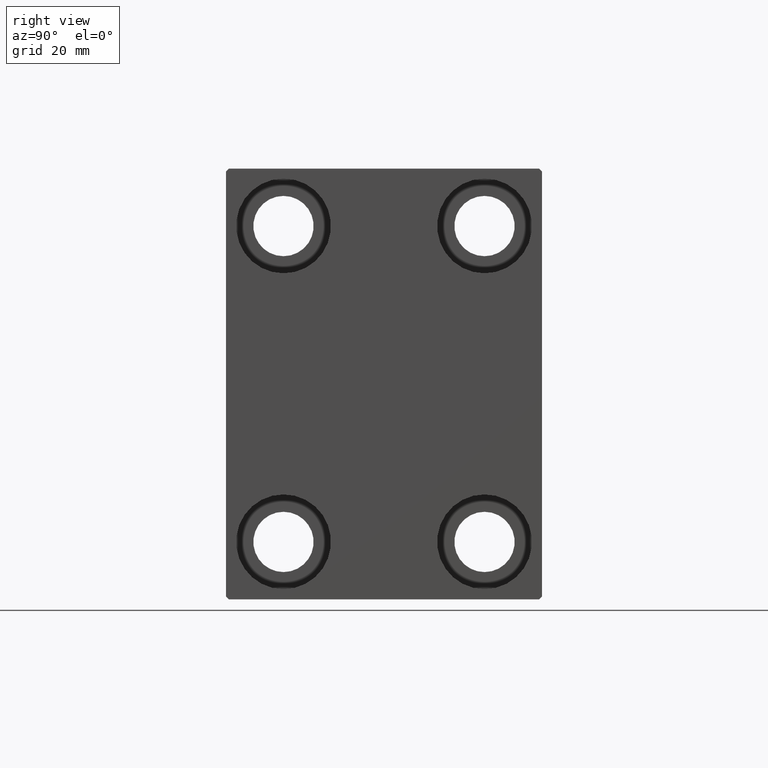
[diagram: clean part render]
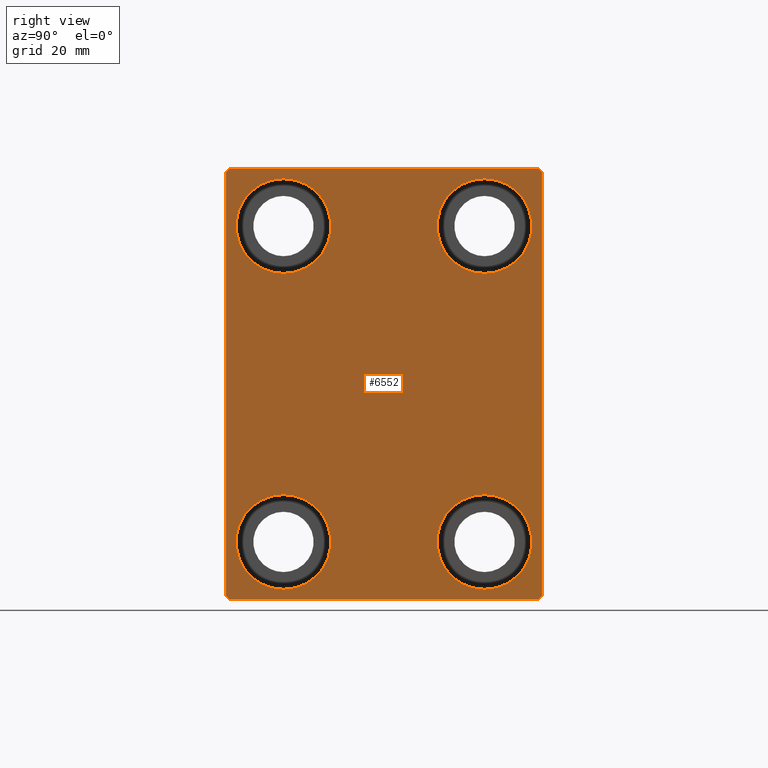
[diagram: same view with one face highlighted and labeled with its STEP entity id]
A machine part, right view. The second image highlights one B-rep face of the part: STEP entity #6552.
In plain terms, the highlighted planar face has unit normal (1, 0, 0).
Its self-contained STEP definition (entity closure, byte-faithful):
#413 = CARTESIAN_POINT ( 'NONE',  ( 75.00000000000000000, -27.50000000000000355, 37.50000000000000000 ) ) ;
#453 = VERTEX_POINT ( 'NONE', #12860 ) ;
#493 = CARTESIAN_POINT ( 'NONE',  ( 75.00000000000000000, 0.000000000000000000, 0.000000000000000000 ) ) ;
#673 = CARTESIAN_POINT ( 'NONE',  ( 75.00000000000000000, 17.50000000000000355, 35.74999999999999289 ) ) ;
#1013 = VERTEX_POINT ( 'NONE', #30051 ) ;
#1018 = VECTOR ( 'NONE', #8622, 1000.000000000000000 ) ;
#1132 = CARTESIAN_POINT ( 'NONE',  ( 75.00000000000000000, 17.50000000000000355, 19.25000000000000000 ) ) ;
#1497 = DIRECTION ( 'NONE',  ( -0.000000000000000000, 0.7071067811865474617, 0.7071067811865474617 ) ) ;
#1647 = LINE ( 'NONE', #8533, #13501 ) ;
#1760 = CARTESIAN_POINT ( 'NONE',  ( 75.00000000000000000, 27.00000000000000355, -37.50000000000000000 ) ) ;
#1762 = AXIS2_PLACEMENT_3D ( 'NONE', #9081, #5747, #30403 ) ;
#2148 = DIRECTION ( 'NONE',  ( 0.000000000000000000, 0.000000000000000000, 1.000000000000000000 ) ) ;
#2385 = VECTOR ( 'NONE', #1497, 1000.000000000000114 ) ;
#2696 = EDGE_CURVE ( 'NONE', #15962, #18148, #16379, .T. ) ;
#3442 = VERTEX_POINT ( 'NONE', #673 ) ;
#3531 = EDGE_CURVE ( 'NONE', #453, #37276, #18446, .T. ) ;
#3645 = DIRECTION ( 'NONE',  ( -0.000000000000000000, 0.7071067811865474617, -0.7071067811865474617 ) ) ;
#3832 = DIRECTION ( 'NONE',  ( 0.000000000000000000, 0.000000000000000000, -1.000000000000000000 ) ) ;
#3905 = VERTEX_POINT ( 'NONE', #6764 ) ;
#4729 = EDGE_LOOP ( 'NONE', ( #23780, #9057 ) ) ;
#5169 = VERTEX_POINT ( 'NONE', #23390 ) ;
#5289 = CIRCLE ( 'NONE', #7399, 8.249999999999992895 ) ;
#5294 = DIRECTION ( 'NONE',  ( 0.000000000000000000, 0.000000000000000000, 1.000000000000000000 ) ) ;
#5747 = DIRECTION ( 'NONE',  ( -1.000000000000000000, -0.000000000000000000, -0.000000000000000000 ) ) ;
#6169 = ORIENTED_EDGE ( 'NONE', *, *, #26540, .T. ) ;
#6354 = DIRECTION ( 'NONE',  ( 0.000000000000000000, -1.000000000000000000, -1.261617073437677999E-16 ) ) ;
#6552 = ADVANCED_FACE ( 'NONE', ( #17377, #13388, #27184, #30748, #16933 ), #34326, .T. ) ;
#6764 = CARTESIAN_POINT ( 'NONE',  ( 75.00000000000000000, 27.00000000000001066, 37.50000000000000711 ) ) ;
#7002 = CARTESIAN_POINT ( 'NONE',  ( 75.00000000000000000, 17.49999999999999645, -27.50000000000000355 ) ) ;
#7031 = EDGE_CURVE ( 'NONE', #3905, #41437, #23474, .T. ) ;
#7399 = AXIS2_PLACEMENT_3D ( 'NONE', #26650, #39370, #26428 ) ;
#7862 = ORIENTED_EDGE ( 'NONE', *, *, #38098, .T. ) ;
#8533 = CARTESIAN_POINT ( 'NONE',  ( 75.00000000000000000, -32.25000000000000711, 32.25000000000000711 ) ) ;
#8619 = DIRECTION ( 'NONE',  ( -1.000000000000000000, -0.000000000000000000, -0.000000000000000000 ) ) ;
#8622 = DIRECTION ( 'NONE',  ( -0.000000000000000000, -0.7071067811865426878, 0.7071067811865524577 ) ) ;
#8654 = EDGE_LOOP ( 'NONE', ( #32977, #6169, #13238, #28623, #22279, #22543, #22751, #40957 ) ) ;
#8845 = CARTESIAN_POINT ( 'NONE',  ( 75.00000000000000000, 32.25000000000019185, 32.24999999999975131 ) ) ;
#9039 = CARTESIAN_POINT ( 'NONE',  ( 75.00000000000000000, 32.25000000000000000, -32.25000000000000000 ) ) ;
#9057 = ORIENTED_EDGE ( 'NONE', *, *, #42649, .T. ) ;
#9081 = CARTESIAN_POINT ( 'NONE',  ( 75.00000000000000000, -17.50000000000000355, -27.50000000000000355 ) ) ;
#9876 = LINE ( 'NONE', #23220, #17749 ) ;
#10443 = EDGE_CURVE ( 'NONE', #38981, #24657, #20412, .T. ) ;
#11514 = DIRECTION ( 'NONE',  ( -1.000000000000000000, -0.000000000000000000, -0.000000000000000000 ) ) ;
#12051 = VERTEX_POINT ( 'NONE', #1760 ) ;
#12074 = AXIS2_PLACEMENT_3D ( 'NONE', #22175, #8619, #5294 ) ;
#12339 = VECTOR ( 'NONE', #27755, 1000.000000000000000 ) ;
#12860 = CARTESIAN_POINT ( 'NONE',  ( 75.00000000000000000, 27.50000000000000355, -37.00000000000000000 ) ) ;
#13238 = ORIENTED_EDGE ( 'NONE', *, *, #10443, .T. ) ;
#13338 = EDGE_LOOP ( 'NONE', ( #21465, #7862 ) ) ;
#13388 = FACE_BOUND ( 'NONE', #36207, .T. ) ;
#13501 = VECTOR ( 'NONE', #15405, 1000.000000000000114 ) ;
#14286 = CARTESIAN_POINT ( 'NONE',  ( 75.00000000000000000, -27.00000000000000355, -37.50000000000000000 ) ) ;
#14759 = DIRECTION ( 'NONE',  ( -1.000000000000000000, -0.000000000000000000, -0.000000000000000000 ) ) ;
#15136 = CARTESIAN_POINT ( 'NONE',  ( 75.00000000000000000, -27.00000000000001776, 37.50000000000000000 ) ) ;
#15405 = DIRECTION ( 'NONE',  ( 0.000000000000000000, -0.7071067811865474617, -0.7071067811865474617 ) ) ;
#15545 = CARTESIAN_POINT ( 'NONE',  ( 75.00000000000000000, 27.50000000000000355, -37.50000000000000000 ) ) ;
#15613 = CARTESIAN_POINT ( 'NONE',  ( 75.00000000000000000, 17.49999999999999645, -35.75000000000000711 ) ) ;
#15648 = VECTOR ( 'NONE', #25741, 1000.000000000000000 ) ;
#15962 = VERTEX_POINT ( 'NONE', #37826 ) ;
#16340 = CARTESIAN_POINT ( 'NONE',  ( 75.00000000000000000, 27.49999999999999645, 37.50000000000000711 ) ) ;
#16379 = CIRCLE ( 'NONE', #36985, 8.250000000000000000 ) ;
#16933 = FACE_OUTER_BOUND ( 'NONE', #8654, .T. ) ;
#17377 = FACE_BOUND ( 'NONE', #21549, .T. ) ;
#17749 = VECTOR ( 'NONE', #3645, 1000.000000000000114 ) ;
#18148 = VERTEX_POINT ( 'NONE', #15613 ) ;
#18446 = LINE ( 'NONE', #15545, #34174 ) ;
#18822 = DIRECTION ( 'NONE',  ( -1.000000000000000000, -0.000000000000000000, -0.000000000000000000 ) ) ;
#19273 = DIRECTION ( 'NONE',  ( 0.000000000000000000, 0.000000000000000000, 1.000000000000000000 ) ) ;
#19483 = CIRCLE ( 'NONE', #1762, 8.250000000000000000 ) ;
#20412 = LINE ( 'NONE', #413, #12339 ) ;
#20877 = CARTESIAN_POINT ( 'NONE',  ( 75.00000000000000000, -17.50000000000000355, -19.25000000000000355 ) ) ;
#21444 = VECTOR ( 'NONE', #6354, 1000.000000000000000 ) ;
#21465 = ORIENTED_EDGE ( 'NONE', *, *, #21474, .T. ) ;
#21474 = EDGE_CURVE ( 'NONE', #22353, #3442, #22041, .T. ) ;
#21549 = EDGE_LOOP ( 'NONE', ( #35453, #33510 ) ) ;
#22041 = CIRCLE ( 'NONE', #12074, 8.249999999999992895 ) ;
#22175 = CARTESIAN_POINT ( 'NONE',  ( 75.00000000000000000, 17.50000000000000355, 27.49999999999999645 ) ) ;
#22186 = AXIS2_PLACEMENT_3D ( 'NONE', #493, #37869, #3832 ) ;
#22279 = ORIENTED_EDGE ( 'NONE', *, *, #23170, .T. ) ;
#22353 = VERTEX_POINT ( 'NONE', #1132 ) ;
#22393 = CARTESIAN_POINT ( 'NONE',  ( 75.00000000000000000, 27.49999999999999645, 37.00000000000001421 ) ) ;
#22543 = ORIENTED_EDGE ( 'NONE', *, *, #36326, .T. ) ;
#22751 = ORIENTED_EDGE ( 'NONE', *, *, #3531, .T. ) ;
#23170 = EDGE_CURVE ( 'NONE', #23628, #12051, #38671, .T. ) ;
#23220 = CARTESIAN_POINT ( 'NONE',  ( 75.00000000000000000, -32.25000000000000000, -32.25000000000000000 ) ) ;
#23390 = CARTESIAN_POINT ( 'NONE',  ( 75.00000000000000000, -17.49999999999999645, 35.74999999999999289 ) ) ;
#23474 = LINE ( 'NONE', #16340, #21444 ) ;
#23518 = CIRCLE ( 'NONE', #32086, 8.250000000000000000 ) ;
#23628 = VERTEX_POINT ( 'NONE', #14286 ) ;
#23780 = ORIENTED_EDGE ( 'NONE', *, *, #37362, .T. ) ;
#24657 = VERTEX_POINT ( 'NONE', #31165 ) ;
#25741 = DIRECTION ( 'NONE',  ( 0.000000000000000000, 1.000000000000000000, 0.000000000000000000 ) ) ;
#25813 = AXIS2_PLACEMENT_3D ( 'NONE', #28393, #18822, #2148 ) ;
#26368 = CARTESIAN_POINT ( 'NONE',  ( 75.00000000000000000, -17.50000000000000355, -27.50000000000000355 ) ) ;
#26383 = EDGE_CURVE ( 'NONE', #24657, #23628, #9876, .T. ) ;
#26428 = DIRECTION ( 'NONE',  ( 0.000000000000000000, 0.000000000000000000, 1.000000000000000000 ) ) ;
#26540 = EDGE_CURVE ( 'NONE', #41437, #38981, #1647, .T. ) ;
#26593 = DIRECTION ( 'NONE',  ( 0.000000000000000000, 0.000000000000000000, 1.000000000000000000 ) ) ;
#26650 = CARTESIAN_POINT ( 'NONE',  ( 75.00000000000000000, 17.50000000000000355, 27.49999999999999645 ) ) ;
#27184 = FACE_BOUND ( 'NONE', #13338, .T. ) ;
#27268 = AXIS2_PLACEMENT_3D ( 'NONE', #26368, #43290, #26593 ) ;
#27755 = DIRECTION ( 'NONE',  ( 0.000000000000000000, 0.000000000000000000, -1.000000000000000000 ) ) ;
#28393 = CARTESIAN_POINT ( 'NONE',  ( 75.00000000000000000, -17.49999999999999645, 27.49999999999999645 ) ) ;
#28623 = ORIENTED_EDGE ( 'NONE', *, *, #26383, .T. ) ;
#28705 = CIRCLE ( 'NONE', #37211, 8.249999999999992895 ) ;
#28751 = VERTEX_POINT ( 'NONE', #31638 ) ;
#29072 = CARTESIAN_POINT ( 'NONE',  ( 75.00000000000000000, -27.50000000000000355, -37.50000000000000000 ) ) ;
#29155 = EDGE_CURVE ( 'NONE', #18148, #15962, #23518, .T. ) ;
#29298 = CARTESIAN_POINT ( 'NONE',  ( 75.00000000000000000, -17.49999999999999645, 27.49999999999999645 ) ) ;
#30051 = CARTESIAN_POINT ( 'NONE',  ( 75.00000000000000000, -17.49999999999999645, 19.25000000000000000 ) ) ;
#30403 = DIRECTION ( 'NONE',  ( 0.000000000000000000, 0.000000000000000000, 1.000000000000000000 ) ) ;
#30748 = FACE_BOUND ( 'NONE', #4729, .T. ) ;
#31165 = CARTESIAN_POINT ( 'NONE',  ( 75.00000000000000000, -27.50000000000000355, -37.00000000000000000 ) ) ;
#31638 = CARTESIAN_POINT ( 'NONE',  ( 75.00000000000000000, -17.50000000000000355, -35.75000000000000711 ) ) ;
#32086 = AXIS2_PLACEMENT_3D ( 'NONE', #7002, #14759, #37928 ) ;
#32977 = ORIENTED_EDGE ( 'NONE', *, *, #7031, .T. ) ;
#33510 = ORIENTED_EDGE ( 'NONE', *, *, #2696, .T. ) ;
#33605 = ORIENTED_EDGE ( 'NONE', *, *, #41108, .T. ) ;
#33609 = CARTESIAN_POINT ( 'NONE',  ( 75.00000000000000000, 17.49999999999999645, -27.50000000000000355 ) ) ;
#34174 = VECTOR ( 'NONE', #35173, 1000.000000000000000 ) ;
#34326 = PLANE ( 'NONE',  #22186 ) ;
#35173 = DIRECTION ( 'NONE',  ( 0.000000000000000000, -9.251858538542970348E-17, 1.000000000000000000 ) ) ;
#35453 = ORIENTED_EDGE ( 'NONE', *, *, #29155, .T. ) ;
#36207 = EDGE_LOOP ( 'NONE', ( #42563, #33605 ) ) ;
#36301 = DIRECTION ( 'NONE',  ( -1.000000000000000000, -0.000000000000000000, -0.000000000000000000 ) ) ;
#36326 = EDGE_CURVE ( 'NONE', #12051, #453, #41982, .T. ) ;
#36364 = EDGE_CURVE ( 'NONE', #1013, #5169, #41467, .T. ) ;
#36530 = CIRCLE ( 'NONE', #27268, 8.250000000000000000 ) ;
#36938 = DIRECTION ( 'NONE',  ( 0.000000000000000000, 0.000000000000000000, 1.000000000000000000 ) ) ;
#36985 = AXIS2_PLACEMENT_3D ( 'NONE', #33609, #36301, #36938 ) ;
#37211 = AXIS2_PLACEMENT_3D ( 'NONE', #29298, #11514, #19273 ) ;
#37276 = VERTEX_POINT ( 'NONE', #22393 ) ;
#37362 = EDGE_CURVE ( 'NONE', #28751, #42470, #36530, .T. ) ;
#37826 = CARTESIAN_POINT ( 'NONE',  ( 75.00000000000000000, 17.49999999999999645, -19.25000000000000355 ) ) ;
#37869 = DIRECTION ( 'NONE',  ( 1.000000000000000000, 0.000000000000000000, 0.000000000000000000 ) ) ;
#37928 = DIRECTION ( 'NONE',  ( 0.000000000000000000, 0.000000000000000000, 1.000000000000000000 ) ) ;
#38098 = EDGE_CURVE ( 'NONE', #3442, #22353, #5289, .T. ) ;
#38359 = EDGE_CURVE ( 'NONE', #37276, #3905, #39321, .T. ) ;
#38671 = LINE ( 'NONE', #29072, #15648 ) ;
#38981 = VERTEX_POINT ( 'NONE', #43499 ) ;
#39321 = LINE ( 'NONE', #8845, #1018 ) ;
#39370 = DIRECTION ( 'NONE',  ( -1.000000000000000000, -0.000000000000000000, -0.000000000000000000 ) ) ;
#40957 = ORIENTED_EDGE ( 'NONE', *, *, #38359, .T. ) ;
#41108 = EDGE_CURVE ( 'NONE', #5169, #1013, #28705, .T. ) ;
#41437 = VERTEX_POINT ( 'NONE', #15136 ) ;
#41467 = CIRCLE ( 'NONE', #25813, 8.249999999999992895 ) ;
#41982 = LINE ( 'NONE', #9039, #2385 ) ;
#42470 = VERTEX_POINT ( 'NONE', #20877 ) ;
#42563 = ORIENTED_EDGE ( 'NONE', *, *, #36364, .T. ) ;
#42649 = EDGE_CURVE ( 'NONE', #42470, #28751, #19483, .T. ) ;
#43290 = DIRECTION ( 'NONE',  ( -1.000000000000000000, -0.000000000000000000, -0.000000000000000000 ) ) ;
#43499 = CARTESIAN_POINT ( 'NONE',  ( 75.00000000000000000, -27.50000000000000355, 37.00000000000001421 ) ) ;